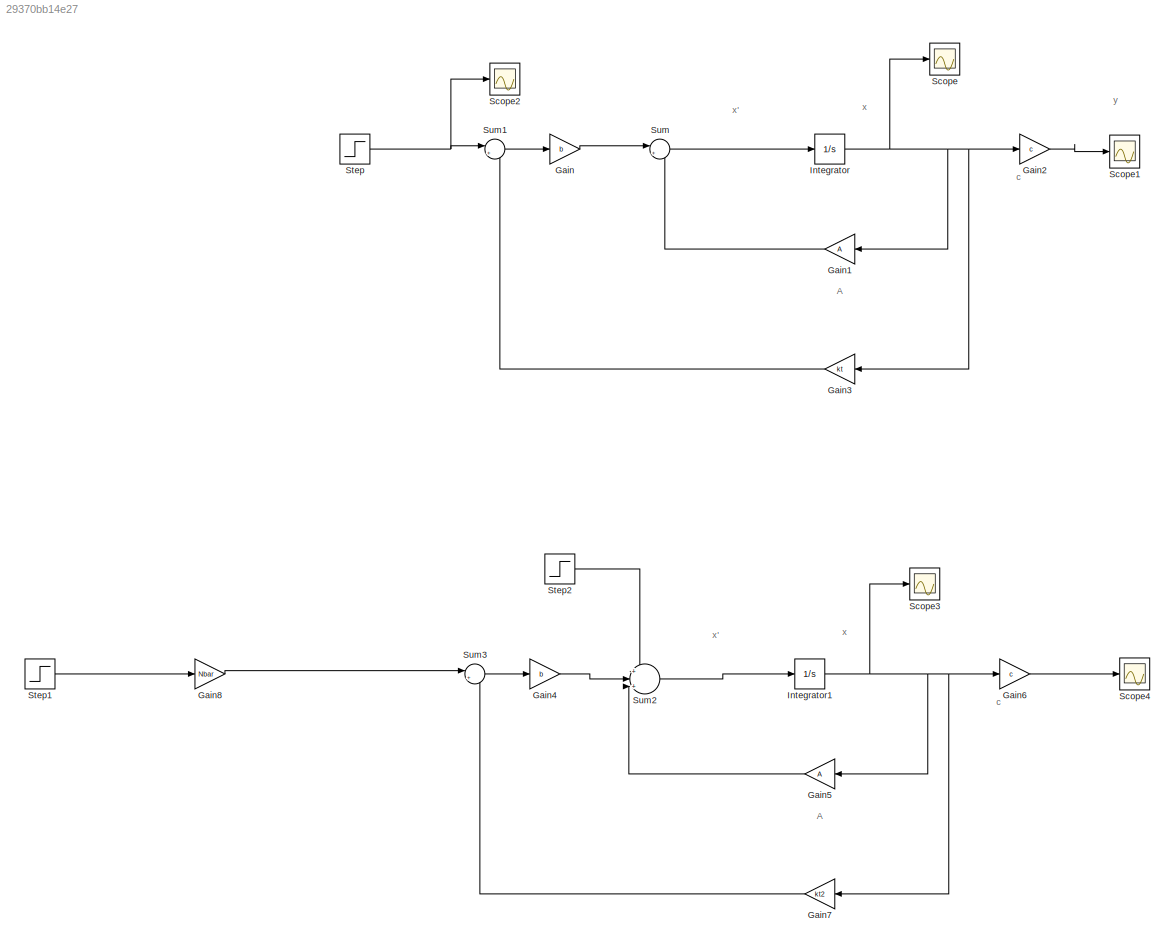
MODEL slx_29370bb14e27
KIND model
CONFIG AbsTol = auto
CONFIG EnableMultiTasking = off
CONFIG FixedStep = auto
CONFIG MaxStep = auto
CONFIG MinStep = auto
CONFIG RelTol = 1e-3
CONFIG SampleTimeConstraint = Unconstrained
CONFIG SolverName = VariableStepAuto
CONFIG StartTime = 0.0
CONFIG StopTime = 10.0
BLOCK [Gain] Gain
  Gain = b
BLOCK [Gain] Gain1
  Gain = A
  Multiplication = Matrix(K*u) (u vector)
  NameLocation = top
BLOCK [Gain] Gain2
  Gain = c
  Multiplication = Matrix(K*u) (u vector)
BLOCK [Gain] Gain3
  Gain = kt
  Multiplication = Matrix(K*u) (u vector)
  NameLocation = top
BLOCK [Gain] Gain4
  Gain = b
BLOCK [Gain] Gain5
  Gain = A
  Multiplication = Matrix(K*u) (u vector)
  NameLocation = top
BLOCK [Gain] Gain6
  Gain = c
  Multiplication = Matrix(K*u) (u vector)
BLOCK [Gain] Gain7
  Gain = kt2
  Multiplication = Matrix(K*u) (u vector)
  NameLocation = top
BLOCK [Gain] Gain8
  Gain = Nbar
BLOCK [Integrator] Integrator
BLOCK [Integrator] Integrator1
BLOCK [Scope] Scope
  Floating = off
  NumInputPorts = 1
  ScopeSpecificationString = Simulink.scopes.TimeScopeBlockCfg('CurrentConfiguration', extmgr.ConfigurationSet(extmgr.Configuration('Core','General UI',true),extmgr.Configuration('Core','Source UI',true),extmgr.Configuration('Sources','WiredSimulink',true),extmgr.Configuration('Visuals','Time Domain',true,'SerializedDisplays',{struct('MinYLimReal','-0.00263','MaxYLimReal','0.00062','YLabelReal','','MinYLimMag','0.00000','MaxY...<+1362ch>
BLOCK [Scope] Scope1
  Floating = off
  NumInputPorts = 2
  ScopeSpecificationString = Simulink.scopes.TimeScopeBlockCfg('CurrentConfiguration', extmgr.ConfigurationSet(extmgr.Configuration('Core','General UI',true),extmgr.Configuration('Core','Source UI',true),extmgr.Configuration('Sources','WiredSimulink',true,'DataLoggingVariableName','ScopeData1'),extmgr.Configuration('Visuals','Time Domain',true,'SerializedDisplays',{struct('MinYLimReal','-0.0000068','MaxYLimReal','-0.0000005',...<+1442ch>
BLOCK [Scope] Scope2
  Floating = off
  NumInputPorts = 1
  ScopeSpecificationString = Simulink.scopes.TimeScopeBlockCfg('CurrentConfiguration', extmgr.ConfigurationSet(extmgr.Configuration('Core','General UI',true),extmgr.Configuration('Core','Source UI',true),extmgr.Configuration('Sources','WiredSimulink',true,'DataLoggingVariableName','ScopeData2'),extmgr.Configuration('Visuals','Time Domain',true,'SerializedDisplays',{struct('MinYLimReal','-0.00006','MaxYLimReal','0.00056','YLab...<+1470ch>
BLOCK [Scope] Scope3
  Floating = off
  NumInputPorts = 1
  ScopeSpecificationString = Simulink.scopes.TimeScopeBlockCfg('CurrentConfiguration', extmgr.ConfigurationSet(extmgr.Configuration('Core','General UI',true),extmgr.Configuration('Core','Source UI',true),extmgr.Configuration('Sources','WiredSimulink',true,'DataLoggingVariableName','ScopeData3'),extmgr.Configuration('Visuals','Time Domain',true,'SerializedDisplays',{struct('MinYLimReal','-5.25707','MaxYLimReal','1.24518','YLab...<+1401ch>
BLOCK [Scope] Scope4
  Floating = off
  NumInputPorts = 1
  ScopeSpecificationString = Simulink.scopes.TimeScopeBlockCfg('CurrentConfiguration', extmgr.ConfigurationSet(extmgr.Configuration('Core','General UI',true),extmgr.Configuration('Core','Source UI',true),extmgr.Configuration('Sources','WiredSimulink',true,'DataLoggingVariableName','ScopeData4'),extmgr.Configuration('Visuals','Time Domain',true,'SerializedDisplays',{struct('MinYLimReal','-0.00029','MaxYLimReal','0.00265','YLab...<+1364ch>
BLOCK [Step] Step
  After = 0.0005
  SampleTime = 0
BLOCK [Step] Step1
  After = 0.0005
  SampleTime = 0
BLOCK [Step] Step2
  After = 0.03
  SampleTime = 0
  Time = 2.5
BLOCK [Sum] Sum
  Inputs = |++
BLOCK [Sum] Sum1
  Inputs = |+-
BLOCK [Sum] Sum2
  Inputs = +|++|
BLOCK [Sum] Sum3
  Inputs = |+-
ANNOTATION (root): A
ANNOTATION (root): c
ANNOTATION (root): x '
ANNOTATION (root): x
ANNOTATION (root): y
LINE Gain1:1 -> Sum:2
LINE Gain2:1 -> Scope1:1
LINE Gain3:1 -> Sum1:2
LINE Gain4:1 -> Sum2:2
LINE Gain5:1 -> Sum2:3
LINE Gain6:1 -> Scope4:1
LINE Gain7:1 -> Sum3:2
LINE Gain8:1 -> Sum3:1
LINE Gain:1 -> Sum:1
NET Integrator1:1 -> Gain5:1, Gain6:1, Gain7:1, Scope3:1
NET Integrator:1 -> Gain1:1, Gain2:1, Gain3:1, Scope:1
LINE Step1:1 -> Gain8:1
LINE Step2:1 -> Sum2:1
NET Step:1 -> Scope2:1, Sum1:1
LINE Sum1:1 -> Gain:1
LINE Sum2:1 -> Integrator1:1
LINE Sum3:1 -> Gain4:1
LINE Sum:1 -> Integrator:1
note: NET lines group one-source signal fan-out (src -> all destinations, sorted); 1:1 wires keep LINE
